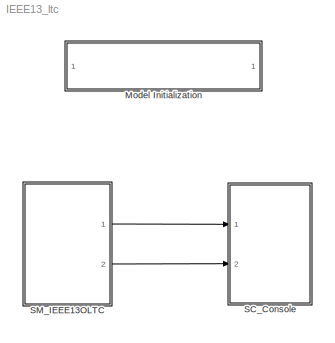
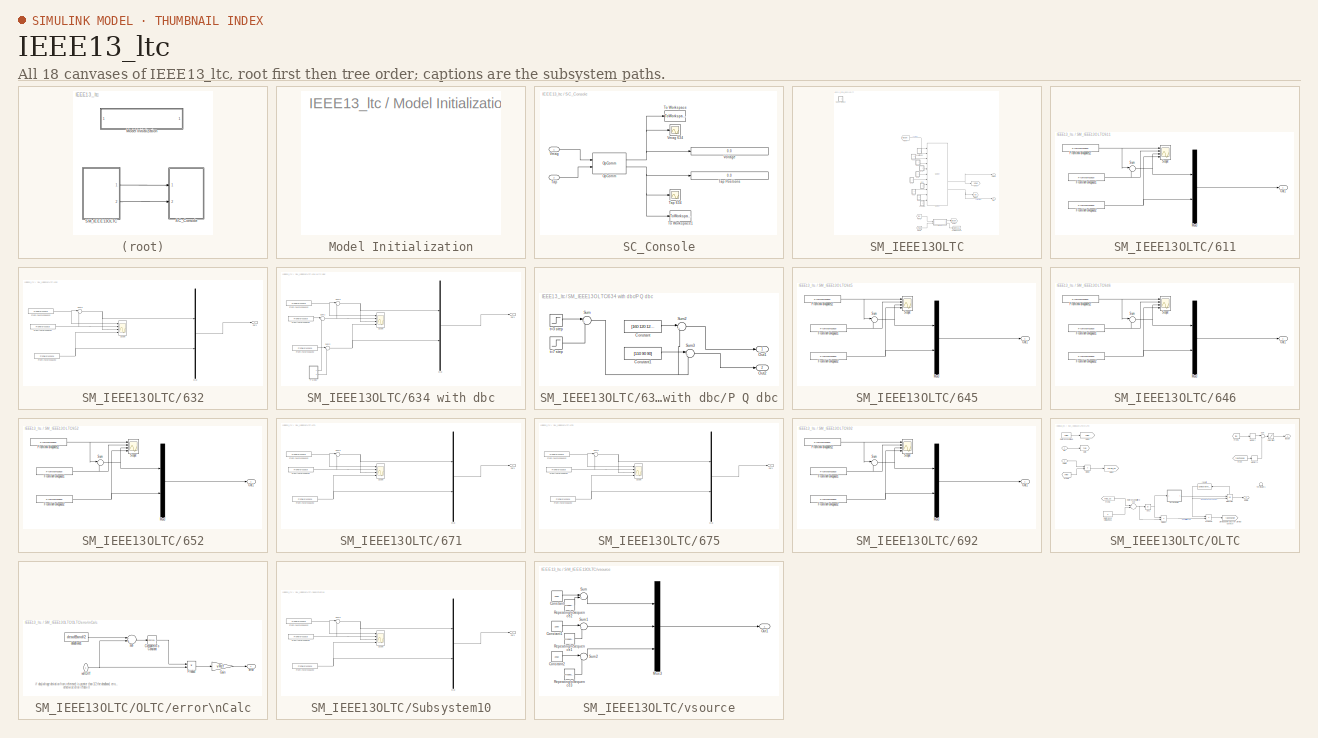
[diagram: thumbnail index - all 18 canvases of the model, root first then tree order]
MODEL IEEE13_ltc
KIND model
CONFIG InitFcn = Ts=3;
CONFIG PostLoadFcn = Ts=3;
BLOCK [SubSystem] Model Initialization
  AncestorBlock = artemis/Tools /Misc/Model Initialization
  CopyFcn = set_param(gcb,'LinkStatus','inactive')
  Ports = []
  RequestExecContextInheritance = off
  SID = 1
BLOCK [SubSystem] SC_Console
  Ports = [2]
  RequestExecContextInheritance = off
  SID = 150
BLOCK [Reference] SC_Console/OpComm  REF=rtlab/OpComm
  Interpolation = on
  Missed_Data = off
  Offset = off
  Ports = [2, 2]
  SID = 155
  Samples = off
  Sim_Time = off
  SourceBlock = rtlab/OpComm
  SourceType = RT-LAB OpComm
  Synchronization = on
  Threshold = 1.0
  dynSigOut = off
  from_console = 0
  groupe_acq = 1
  nbport = 2
  st = 0
  subsys_rate = 0
  warning_done = off
  writeOpCommFile = off
BLOCK [Inport] SC_Console/Tap
  IconDisplay = Port number
  Port = 2
  SID = 153
BLOCK [Scope] SC_Console/Tap 634
  Floating = off
  LimitDataPoints = off
  NumInputPorts = 1
  Ports = [1]
  SID = 158
  SaveName = ScopeData1
  TimeRange = 300
  YMax = 1
  YMin = -1
BLOCK [Display] SC_Console/Tap Positions
  Decimation = 1
  Ports = [1]
  SID = 160
BLOCK [ToWorkspace] SC_Console/To Workspace
  FixptAsFi = on
  MaxDataPoints = inf
  Ports = [1]
  SID = 177
  SampleTime = -1
  Save2DSignal = 3-D array (concatenate along third dimension)
  VariableName = Vmag_634
BLOCK [ToWorkspace] SC_Console/To Workspace1
  FixptAsFi = on
  MaxDataPoints = inf
  Ports = [1]
  SID = 178
  SampleTime = -1
  Save2DSignal = 3-D array (concatenate along third dimension)
  VariableName = Tap_634
BLOCK [Inport] SC_Console/Vmag
  IconDisplay = Port number
  SID = 151
BLOCK [Scope] SC_Console/Vmag 634
  Floating = off
  LimitDataPoints = off
  NumInputPorts = 1
  Ports = [1]
  SID = 157
  YMax = 272.761
  YMin = 246.783
BLOCK [Display] SC_Console/Voltage
  Decimation = 1
  Ports = [1]
  SID = 159
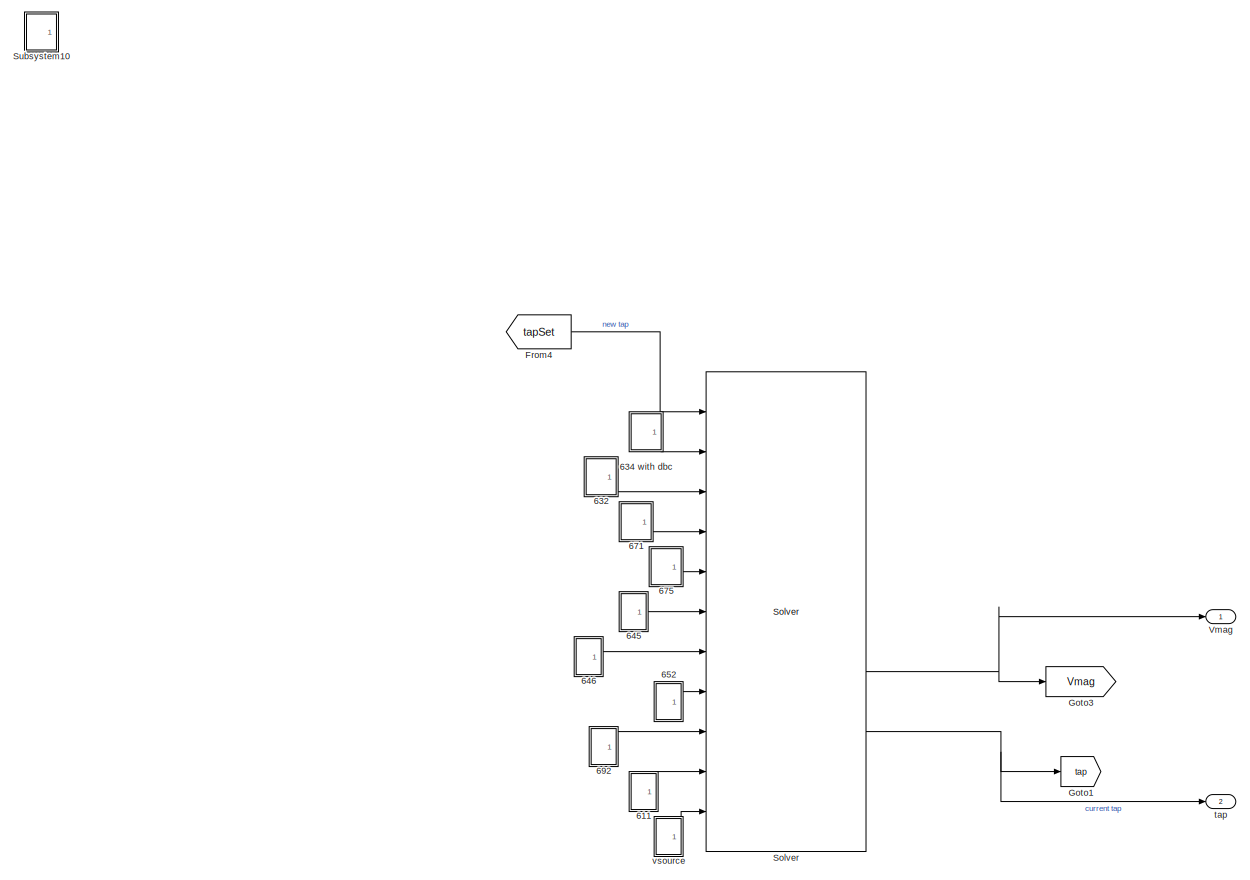
[diagram: SM_IEEE13OLTC - part 1/2, most of the canvas]
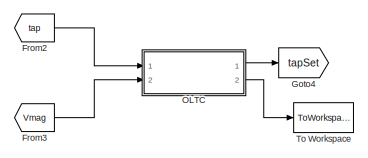
[diagram: SM_IEEE13OLTC - part 2/2, bottom center region]
BLOCK [SubSystem] SM_IEEE13OLTC
  Ports = [0, 2]
  RequestExecContextInheritance = off
  SID = 147
BLOCK [SubSystem] SM_IEEE13OLTC/611
  Ports = [0, 1]
  RequestExecContextInheritance = off
  SID = 247
BLOCK [FromWorkspace] SM_IEEE13OLTC/611/From\nWorkspace1
  OutputAfterFinalValue = Holding final value
  SID = 248
  SampleTime = Ts
  VariableName = Node_611_P
  ZeroCross = on
BLOCK [FromWorkspace] SM_IEEE13OLTC/611/From\nWorkspace12
  OutputAfterFinalValue = Holding final value
  SID = 249
  SampleTime = Ts
  VariableName = Node_611_G
  ZeroCross = on
BLOCK [FromWorkspace] SM_IEEE13OLTC/611/From\nWorkspace2
  OutputAfterFinalValue = Holding final value
  SID = 250
  SampleTime = Ts
  VariableName = Node_611_Q
  ZeroCross = on
BLOCK [Mux] SM_IEEE13OLTC/611/Mux3
  DisplayOption = bar
  Inputs = 2
  Ports = [2, 1]
  SID = 251
BLOCK [Outport] SM_IEEE13OLTC/611/Out1
  IconDisplay = Port number
  SID = 254
BLOCK [Scope] SM_IEEE13OLTC/611/Scope
  Floating = off
  LimitDataPoints = off
  NumInputPorts = 4
  Ports = [4]
  SID = 252
  SampleInput = on
  SampleTime = Ts
  SaveName = ScopeData1
  YMax = 231~800~5~5
  YMin = 229~-50~-5~-5
  ZoomMode = xonly
BLOCK [Sum] SM_IEEE13OLTC/611/Sum
  IconShape = round
  InputSameDT = off
  Inputs = |-+
  OutDataTypeStr = Inherit: Inherit via internal rule
  Ports = [2, 1]
  SID = 253
  SaturateOnIntegerOverflow = off
BLOCK [SubSystem] SM_IEEE13OLTC/632
  Ports = [0, 1]
  RequestExecContextInheritance = off
  SID = 231
BLOCK [FromWorkspace] SM_IEEE13OLTC/632/From\nWorkspace1
  OutputAfterFinalValue = Holding final value
  SID = 232
  SampleTime = Ts
  VariableName = Node_632_P
  ZeroCross = on
BLOCK [FromWorkspace] SM_IEEE13OLTC/632/From\nWorkspace12
  OutputAfterFinalValue = Holding final value
  SID = 233
  SampleTime = Ts
  VariableName = Node_632_G
  ZeroCross = on
BLOCK [FromWorkspace] SM_IEEE13OLTC/632/From\nWorkspace2
  OutputAfterFinalValue = Holding final value
  SID = 234
  SampleTime = Ts
  VariableName = Node_632_Q
  ZeroCross = on
BLOCK [Mux] SM_IEEE13OLTC/632/Mux
  DisplayOption = bar
  Inputs = 2
  Ports = [2, 1]
  SID = 235
BLOCK [Outport] SM_IEEE13OLTC/632/Out1
  IconDisplay = Port number
  SID = 238
BLOCK [Scope] SM_IEEE13OLTC/632/Scope
  Floating = off
  LimitDataPoints = off
  NumInputPorts = 4
  Ports = [4]
  SID = 236
  SampleInput = on
  SampleTime = Ts
  SaveName = ScopeData2
  YMax = 231~800~5~5
  YMin = 229~-50~-5~-5
  ZoomMode = xonly
BLOCK [Sum] SM_IEEE13OLTC/632/Sum6
  IconShape = round
  InputSameDT = off
  Inputs = |-+
  OutDataTypeStr = Inherit: Inherit via internal rule
  Ports = [2, 1]
  SID = 237
  SaturateOnIntegerOverflow = off
BLOCK [SubSystem] SM_IEEE13OLTC/634 with dbc
  Ports = [0, 1]
  RequestExecContextInheritance = off
  SID = 273
BLOCK [FromWorkspace] SM_IEEE13OLTC/634 with dbc/From\nWorkspace1
  OutputAfterFinalValue = Holding final value
  SID = 274
  SampleTime = Ts
  VariableName = Node_634_P
  ZeroCross = on
BLOCK [FromWorkspace] SM_IEEE13OLTC/634 with dbc/From\nWorkspace12
  OutputAfterFinalValue = Holding final value
  SID = 275
  SampleTime = Ts
  VariableName = Node_634_G
  ZeroCross = on
BLOCK [FromWorkspace] SM_IEEE13OLTC/634 with dbc/From\nWorkspace2
  OutputAfterFinalValue = Holding final value
  SID = 276
  SampleTime = Ts
  VariableName = Node_634_Q
  ZeroCross = on
BLOCK [Mux] SM_IEEE13OLTC/634 with dbc/Mux
  DisplayOption = bar
  Inputs = 2
  Ports = [2, 1]
  SID = 277
BLOCK [Outport] SM_IEEE13OLTC/634 with dbc/Out1
  IconDisplay = Port number
  SID = 280
BLOCK [SubSystem] SM_IEEE13OLTC/634 with dbc/P Q dbc
  Ports = [0, 2]
  RequestExecContextInheritance = off
  SID = 281
BLOCK [Constant] SM_IEEE13OLTC/634 with dbc/P Q dbc/Constant
  SID = 282
  Value = [160 120 120]
BLOCK [Constant] SM_IEEE13OLTC/634 with dbc/P Q dbc/Constant1
  SID = 283
  Value = [110 90 90]
BLOCK [Outport] SM_IEEE13OLTC/634 with dbc/P Q dbc/Out1
  IconDisplay = Port number
  SID = 289
BLOCK [Outport] SM_IEEE13OLTC/634 with dbc/P Q dbc/Out2
  IconDisplay = Port number
  Port = 2
  SID = 290
BLOCK [Sum] SM_IEEE13OLTC/634 with dbc/P Q dbc/Sum
  IconShape = round
  InputSameDT = off
  Inputs = |++
  OutDataTypeStr = Inherit: Inherit via internal rule
  Ports = [2, 1]
  SID = 284
  SaturateOnIntegerOverflow = off
BLOCK [Sum] SM_IEEE13OLTC/634 with dbc/P Q dbc/Sum2
  IconShape = round
  InputSameDT = off
  Inputs = |++
  OutDataTypeStr = Inherit: Inherit via internal rule
  Ports = [2, 1]
  SID = 285
  SaturateOnIntegerOverflow = off
BLOCK [Sum] SM_IEEE13OLTC/634 with dbc/P Q dbc/Sum3
  IconShape = round
  InputSameDT = off
  Inputs = |++
  OutDataTypeStr = Inherit: Inherit via internal rule
  Ports = [2, 1]
  SID = 286
  SaturateOnIntegerOverflow = off
BLOCK [Step] SM_IEEE13OLTC/634 with dbc/P Q dbc/t=3 step
  After = 100
  SID = 287
  SampleTime = 0
  Time = 3
BLOCK [Step] SM_IEEE13OLTC/634 with dbc/P Q dbc/t=7 step
  After = -200
  SID = 288
  SampleTime = 0
  Time = 7
BLOCK [Scope] SM_IEEE13OLTC/634 with dbc/Scope
  Floating = off
  LimitDataPoints = off
  NumInputPorts = 4
  Ports = [4]
  SID = 278
  SampleInput = on
  SampleTime = Ts
  SaveName = ScopeData2
  YMax = 231~800~5~5
  YMin = 229~-50~-5~-5
  ZoomMode = xonly
BLOCK [Sum] SM_IEEE13OLTC/634 with dbc/Sum1
  IconShape = round
  InputSameDT = off
  Inputs = |++
  OutDataTypeStr = Inherit: Inherit via internal rule
  Ports = [2, 1]
  SID = 291
  SaturateOnIntegerOverflow = off
BLOCK [Sum] SM_IEEE13OLTC/634 with dbc/Sum2
  IconShape = round
  InputSameDT = off
  Inputs = |++
  OutDataTypeStr = Inherit: Inherit via internal rule
  Ports = [2, 1]
  SID = 292
  SaturateOnIntegerOverflow = off
BLOCK [Sum] SM_IEEE13OLTC/634 with dbc/Sum6
  IconShape = round
  InputSameDT = off
  Inputs = |-+
  OutDataTypeStr = Inherit: Inherit via internal rule
  Ports = [2, 1]
  SID = 279
  SaturateOnIntegerOverflow = off
BLOCK [SubSystem] SM_IEEE13OLTC/645
  Ports = [0, 1]
  RequestExecContextInheritance = off
  SID = 183
BLOCK [FromWorkspace] SM_IEEE13OLTC/645/From\nWorkspace1
  OutputAfterFinalValue = Holding final value
  SID = 184
  SampleTime = Ts
  VariableName = Node_645_P
  ZeroCross = on
BLOCK [FromWorkspace] SM_IEEE13OLTC/645/From\nWorkspace12
  OutputAfterFinalValue = Holding final value
  SID = 185
  SampleTime = Ts
  VariableName = Node_645_G
  ZeroCross = on
BLOCK [FromWorkspace] SM_IEEE13OLTC/645/From\nWorkspace2
  OutputAfterFinalValue = Holding final value
  SID = 186
  SampleTime = Ts
  VariableName = Node_645_Q
  ZeroCross = on
BLOCK [Mux] SM_IEEE13OLTC/645/Mux3
  DisplayOption = bar
  Inputs = 2
  Ports = [2, 1]
  SID = 187
BLOCK [Outport] SM_IEEE13OLTC/645/Out1
  IconDisplay = Port number
  SID = 190
BLOCK [Scope] SM_IEEE13OLTC/645/Scope
  Floating = off
  LimitDataPoints = off
  NumInputPorts = 4
  Ports = [4]
  SID = 188
  SampleInput = on
  SampleTime = Ts
  SaveName = ScopeData1
  YMax = 231~800~5~5
  YMin = 229~-50~-5~-5
  ZoomMode = xonly
BLOCK [Sum] SM_IEEE13OLTC/645/Sum
  IconShape = round
  InputSameDT = off
  Inputs = |-+
  OutDataTypeStr = Inherit: Inherit via internal rule
  Ports = [2, 1]
  SID = 189
  SaturateOnIntegerOverflow = off
BLOCK [SubSystem] SM_IEEE13OLTC/646
  Ports = [0, 1]
  RequestExecContextInheritance = off
  SID = 199
BLOCK [FromWorkspace] SM_IEEE13OLTC/646/From\nWorkspace1
  OutputAfterFinalValue = Holding final value
  SID = 200
  SampleTime = Ts
  VariableName = Node_646_P
  ZeroCross = on
BLOCK [FromWorkspace] SM_IEEE13OLTC/646/From\nWorkspace12
  OutputAfterFinalValue = Holding final value
  SID = 201
  SampleTime = Ts
  VariableName = Node_646_G
  ZeroCross = on
BLOCK [FromWorkspace] SM_IEEE13OLTC/646/From\nWorkspace2
  OutputAfterFinalValue = Holding final value
  SID = 202
  SampleTime = Ts
  VariableName = Node_646_Q
  ZeroCross = on
BLOCK [Mux] SM_IEEE13OLTC/646/Mux3
  DisplayOption = bar
  Inputs = 2
  Ports = [2, 1]
  SID = 203
BLOCK [Outport] SM_IEEE13OLTC/646/Out1
  IconDisplay = Port number
  SID = 206
BLOCK [Scope] SM_IEEE13OLTC/646/Scope
  Floating = off
  LimitDataPoints = off
  NumInputPorts = 4
  Ports = [4]
  SID = 204
  SampleInput = on
  SampleTime = Ts
  SaveName = ScopeData1
  YMax = 231~800~5~5
  YMin = 229~-50~-5~-5
  ZoomMode = xonly
BLOCK [Sum] SM_IEEE13OLTC/646/Sum
  IconShape = round
  InputSameDT = off
  Inputs = |-+
  OutDataTypeStr = Inherit: Inherit via internal rule
  Ports = [2, 1]
  SID = 205
  SaturateOnIntegerOverflow = off
BLOCK [SubSystem] SM_IEEE13OLTC/652
  Ports = [0, 1]
  RequestExecContextInheritance = off
  SID = 223
BLOCK [FromWorkspace] SM_IEEE13OLTC/652/From\nWorkspace1
  OutputAfterFinalValue = Holding final value
  SID = 224
  SampleTime = Ts
  VariableName = Node_652_P
  ZeroCross = on
BLOCK [FromWorkspace] SM_IEEE13OLTC/652/From\nWorkspace12
  OutputAfterFinalValue = Holding final value
  SID = 225
  SampleTime = Ts
  VariableName = Node_652_G
  ZeroCross = on
BLOCK [FromWorkspace] SM_IEEE13OLTC/652/From\nWorkspace2
  OutputAfterFinalValue = Holding final value
  SID = 226
  SampleTime = Ts
  VariableName = Node_652_Q
  ZeroCross = on
BLOCK [Mux] SM_IEEE13OLTC/652/Mux3
  DisplayOption = bar
  Inputs = 2
  Ports = [2, 1]
  SID = 227
BLOCK [Outport] SM_IEEE13OLTC/652/Out1
  IconDisplay = Port number
  SID = 230
BLOCK [Scope] SM_IEEE13OLTC/652/Scope
  Floating = off
  LimitDataPoints = off
  NumInputPorts = 4
  Ports = [4]
  SID = 228
  SampleInput = on
  SampleTime = Ts
  SaveName = ScopeData1
  YMax = 231~800~5~5
  YMin = 229~-50~-5~-5
  ZoomMode = xonly
BLOCK [Sum] SM_IEEE13OLTC/652/Sum
  IconShape = round
  InputSameDT = off
  Inputs = |-+
  OutDataTypeStr = Inherit: Inherit via internal rule
  Ports = [2, 1]
  SID = 229
  SaturateOnIntegerOverflow = off
BLOCK [SubSystem] SM_IEEE13OLTC/671
  Ports = [0, 1]
  RequestExecContextInheritance = off
  SID = 207
BLOCK [FromWorkspace] SM_IEEE13OLTC/671/From\nWorkspace1
  OutputAfterFinalValue = Holding final value
  SID = 208
  SampleTime = Ts
  VariableName = Node_671_P
  ZeroCross = on
BLOCK [FromWorkspace] SM_IEEE13OLTC/671/From\nWorkspace12
  OutputAfterFinalValue = Holding final value
  SID = 209
  SampleTime = Ts
  VariableName = Node_671_G
  ZeroCross = on
BLOCK [FromWorkspace] SM_IEEE13OLTC/671/From\nWorkspace2
  OutputAfterFinalValue = Holding final value
  SID = 210
  SampleTime = Ts
  VariableName = Node_671_Q
  ZeroCross = on
BLOCK [Mux] SM_IEEE13OLTC/671/Mux
  DisplayOption = bar
  Inputs = 2
  Ports = [2, 1]
  SID = 211
BLOCK [Outport] SM_IEEE13OLTC/671/Out1
  IconDisplay = Port number
  SID = 214
BLOCK [Scope] SM_IEEE13OLTC/671/Scope
  Floating = off
  LimitDataPoints = off
  NumInputPorts = 4
  Ports = [4]
  SID = 212
  SampleInput = on
  SampleTime = Ts
  SaveName = ScopeData2
  YMax = 231~800~5~5
  YMin = 229~-50~-5~-5
  ZoomMode = xonly
BLOCK [Sum] SM_IEEE13OLTC/671/Sum6
  IconShape = round
  InputSameDT = off
  Inputs = |-+
  OutDataTypeStr = Inherit: Inherit via internal rule
  Ports = [2, 1]
  SID = 213
  SaturateOnIntegerOverflow = off
BLOCK [SubSystem] SM_IEEE13OLTC/675
  Ports = [0, 1]
  RequestExecContextInheritance = off
  SID = 215
BLOCK [FromWorkspace] SM_IEEE13OLTC/675/From\nWorkspace1
  OutputAfterFinalValue = Holding final value
  SID = 216
  SampleTime = Ts
  VariableName = Node_675_P
  ZeroCross = on
BLOCK [FromWorkspace] SM_IEEE13OLTC/675/From\nWorkspace12
  OutputAfterFinalValue = Holding final value
  SID = 217
  SampleTime = Ts
  VariableName = Node_675_G
  ZeroCross = on
BLOCK [FromWorkspace] SM_IEEE13OLTC/675/From\nWorkspace2
  OutputAfterFinalValue = Holding final value
  SID = 218
  SampleTime = Ts
  VariableName = Node_675_Q
  ZeroCross = on
BLOCK [Mux] SM_IEEE13OLTC/675/Mux
  DisplayOption = bar
  Inputs = 2
  Ports = [2, 1]
  SID = 219
BLOCK [Outport] SM_IEEE13OLTC/675/Out1
  IconDisplay = Port number
  SID = 222
BLOCK [Scope] SM_IEEE13OLTC/675/Scope
  Floating = off
  LimitDataPoints = off
  NumInputPorts = 4
  Ports = [4]
  SID = 220
  SampleInput = on
  SampleTime = Ts
  SaveName = ScopeData2
  YMax = 231~800~5~5
  YMin = 229~-50~-5~-5
  ZoomMode = xonly
BLOCK [Sum] SM_IEEE13OLTC/675/Sum6
  IconShape = round
  InputSameDT = off
  Inputs = |-+
  OutDataTypeStr = Inherit: Inherit via internal rule
  Ports = [2, 1]
  SID = 221
  SaturateOnIntegerOverflow = off
BLOCK [SubSystem] SM_IEEE13OLTC/692
  Ports = [0, 1]
  RequestExecContextInheritance = off
  SID = 239
BLOCK [FromWorkspace] SM_IEEE13OLTC/692/From\nWorkspace1
  OutputAfterFinalValue = Holding final value
  SID = 240
  SampleTime = Ts
  VariableName = Node_692_P
  ZeroCross = on
BLOCK [FromWorkspace] SM_IEEE13OLTC/692/From\nWorkspace12
  OutputAfterFinalValue = Holding final value
  SID = 241
  SampleTime = Ts
  VariableName = Node_692_G
  ZeroCross = on
BLOCK [FromWorkspace] SM_IEEE13OLTC/692/From\nWorkspace2
  OutputAfterFinalValue = Holding final value
  SID = 242
  SampleTime = Ts
  VariableName = Node_692_Q
  ZeroCross = on
BLOCK [Mux] SM_IEEE13OLTC/692/Mux3
  DisplayOption = bar
  Inputs = 2
  Ports = [2, 1]
  SID = 243
BLOCK [Outport] SM_IEEE13OLTC/692/Out1
  IconDisplay = Port number
  SID = 246
BLOCK [Scope] SM_IEEE13OLTC/692/Scope
  Floating = off
  LimitDataPoints = off
  NumInputPorts = 4
  Ports = [4]
  SID = 244
  SampleInput = on
  SampleTime = Ts
  SaveName = ScopeData1
  YMax = 231~800~5~5
  YMin = 229~-50~-5~-5
  ZoomMode = xonly
BLOCK [Sum] SM_IEEE13OLTC/692/Sum
  IconShape = round
  InputSameDT = off
  Inputs = |-+
  OutDataTypeStr = Inherit: Inherit via internal rule
  Ports = [2, 1]
  SID = 245
  SaturateOnIntegerOverflow = off
BLOCK [From] SM_IEEE13OLTC/From2
  GotoTag = tap
  SID = 127
BLOCK [From] SM_IEEE13OLTC/From3
  GotoTag = Vmag
  SID = 130
BLOCK [From] SM_IEEE13OLTC/From4
  GotoTag = tapSet
  SID = 132
BLOCK [Goto] SM_IEEE13OLTC/Goto1
  GotoTag = tap
  SID = 25
BLOCK [Goto] SM_IEEE13OLTC/Goto3
  GotoTag = Vmag
  SID = 128
BLOCK [Goto] SM_IEEE13OLTC/Goto4
  GotoTag = tapSet
  SID = 131
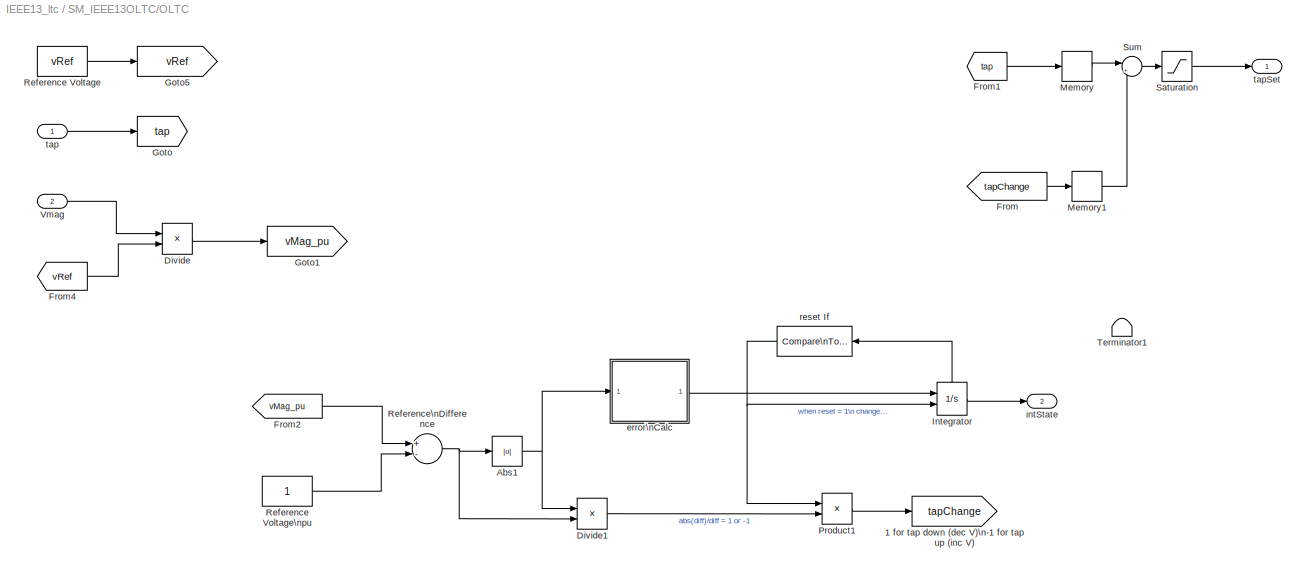
BLOCK [SubSystem] SM_IEEE13OLTC/OLTC
  Ports = [2, 2]
  RequestExecContextInheritance = off
  SID = 79
BLOCK [Goto] SM_IEEE13OLTC/OLTC/1 for tap down (dec V)\n-1 for tap up (inc V)
  GotoTag = tapChange
  SID = 87
BLOCK [Abs] SM_IEEE13OLTC/OLTC/Abs1
  SID = 82
  SaturateOnIntegerOverflow = off
BLOCK [Product] SM_IEEE13OLTC/OLTC/Divide
  InputSameDT = off
  Inputs = */
  OutDataTypeStr = Inherit: Inherit via internal rule
  Ports = [2, 1]
  RndMeth = Floor
  SID = 109
  SaturateOnIntegerOverflow = off
BLOCK [Product] SM_IEEE13OLTC/OLTC/Divide1
  InputSameDT = off
  Inputs = */
  OutDataTypeStr = Inherit: Inherit via internal rule
  Ports = [2, 1]
  RndMeth = Floor
  SID = 86
  SaturateOnIntegerOverflow = off
BLOCK [From] SM_IEEE13OLTC/OLTC/From
  GotoTag = tapChange
  SID = 96
BLOCK [From] SM_IEEE13OLTC/OLTC/From1
  GotoTag = tap
  SID = 97
BLOCK [From] SM_IEEE13OLTC/OLTC/From2
  GotoTag = vMag_pu
  SID = 113
BLOCK [From] SM_IEEE13OLTC/OLTC/From4
  GotoTag = vRef
  SID = 140
BLOCK [Goto] SM_IEEE13OLTC/OLTC/Goto
  GotoTag = tap
  SID = 102
BLOCK [Goto] SM_IEEE13OLTC/OLTC/Goto1
  GotoTag = vMag_pu
  SID = 104
BLOCK [Goto] SM_IEEE13OLTC/OLTC/Goto5
  GotoTag = vRef
  SID = 116
BLOCK [Integrator] SM_IEEE13OLTC/OLTC/Integrator
  ExternalReset = rising
  Ports = [2, 1, 0, 0, 1]
  SID = 88
  ShowStatePort = on
BLOCK [Memory] SM_IEEE13OLTC/OLTC/Memory
  SID = 98
BLOCK [Memory] SM_IEEE13OLTC/OLTC/Memory1
  SID = 99
BLOCK [Product] SM_IEEE13OLTC/OLTC/Product1
  InputSameDT = off
  OutDataTypeStr = Inherit: Inherit via internal rule
  Ports = [2, 1]
  RndMeth = Floor
  SID = 89
  SaturateOnIntegerOverflow = off
BLOCK [Constant] SM_IEEE13OLTC/OLTC/Reference Voltage
  SID = 108
  Value = vRef
BLOCK [Constant] SM_IEEE13OLTC/OLTC/Reference Voltage\npu
  SID = 141
BLOCK [Sum] SM_IEEE13OLTC/OLTC/Reference\nDifference
  InputSameDT = off
  Inputs = +-
  OutDataTypeStr = Inherit: Inherit via internal rule
  Ports = [2, 1]
  SID = 92
  SaturateOnIntegerOverflow = off
BLOCK [Saturate] SM_IEEE13OLTC/OLTC/Saturation
  InputPortMap = u0
  LowerLimit = tapPos(2)
  Ports = [1, 1]
  SID = 100
  UpperLimit = tapPos(1)
BLOCK [Sum] SM_IEEE13OLTC/OLTC/Sum
  IconShape = round
  InputSameDT = off
  Inputs = |+-
  OutDataTypeStr = Inherit: Inherit via internal rule
  Ports = [2, 1]
  SID = 101
  SaturateOnIntegerOverflow = off
BLOCK [Terminator] SM_IEEE13OLTC/OLTC/Terminator1
  SID = 180
BLOCK [Inport] SM_IEEE13OLTC/OLTC/Vmag
  IconDisplay = Port number
  Port = 2
  SID = 103
BLOCK [SubSystem] SM_IEEE13OLTC/OLTC/error\nCalc
  Ports = [1, 1]
  RequestExecContextInheritance = off
  SID = 121
BLOCK [Reference] SM_IEEE13OLTC/OLTC/error\nCalc/Compare\nTo Constant  REF=simulink/Logic and Bit\nOperations/Compare\nTo Constant
  OutDataTypeStr = boolean
  Ports = [1, 1]
  SID = 124
  SourceBlock = simulink/Logic and Bit\nOperations/Compare\nTo Constant
  SourceType = Compare To Constant
  ZeroCross = on
  const = 0
  relop = >
BLOCK [Gain] SM_IEEE13OLTC/OLTC/error\nCalc/Gain
  Gain = vRef
  OutDataTypeStr = Inherit: Inherit via internal rule
  ParamDataTypeStr = Inherit: Inherit via internal rule
  SID = 139
  SaturateOnIntegerOverflow = off
BLOCK [Product] SM_IEEE13OLTC/OLTC/error\nCalc/Product
  InputSameDT = off
  OutDataTypeStr = Inherit: Inherit via internal rule
  Ports = [2, 1]
  RndMeth = Floor
  SID = 126
  SaturateOnIntegerOverflow = off
BLOCK [Constant] SM_IEEE13OLTC/OLTC/error\nCalc/deadBand1
  SID = 118
  Value = deadBand/2
BLOCK [Outport] SM_IEEE13OLTC/OLTC/error\nCalc/error
  IconDisplay = Port number
  SID = 123
BLOCK [Sum] SM_IEEE13OLTC/OLTC/error\nCalc/sub
  InputSameDT = off
  Inputs = -+
  OutDataTypeStr = Inherit: Inherit via internal rule
  Ports = [2, 1]
  SID = 93
  SaturateOnIntegerOverflow = off
BLOCK [Inport] SM_IEEE13OLTC/OLTC/error\nCalc/voltDiff
  IconDisplay = Port number
  SID = 122
BLOCK [Outport] SM_IEEE13OLTC/OLTC/intState
  IconDisplay = Port number
  Port = 2
  SID = 179
BLOCK [Reference] SM_IEEE13OLTC/OLTC/reset If  REF=simulink/Logic and Bit\nOperations/Compare\nTo Constant
  OutDataTypeStr = boolean
  Ports = [1, 1]
  SID = 84
  SourceBlock = simulink/Logic and Bit\nOperations/Compare\nTo Constant
  SourceType = Compare To Constant
  ZeroCross = on
  const = intgConst
  relop = >=
BLOCK [Inport] SM_IEEE13OLTC/OLTC/tap
  IconDisplay = Port number
  SID = 80
BLOCK [Outport] SM_IEEE13OLTC/OLTC/tapSet
  IconDisplay = Port number
  SID = 81
BLOCK [Reference] SM_IEEE13OLTC/Solver  REF=rtlab_phasor/Solver
  Ports = [11, 7]
  SID = 2
  SourceBlock = rtlab_phasor/Solver
  builtin = on
  capidir = 'CAPI'
  capiprefix = capicomp_
  cyme = 'typical.sxst'
  cyme_pf = ''
  cyme_unbalanced = on
  dt = Ts
  dyr = '4992b.dyr'
  epname = System
  exporty = off
  extension = Excel
  fmudir = ''
  fmuprefix = fmucomp_
  lazy_netlist = off
  logging = off
  np = 1
  optim_threads = on
  perflog_on = off
  pf_export = on
  pf_flat_start = off
  pf_max_it = 100
  pf_smart_start = off
  pf_tol_v = 0.00000001
  powerfactory = 'network.dgs'
  raw = '4992b.raw'
  script_activate_postinit = off
  script_postinit_name = ''
  sim_mode = Dynamic simulation only (without power-flow)
  xls = 'IEEE13_ltc_liz.xls'
BLOCK [SubSystem] SM_IEEE13OLTC/Subsystem10
  Ports = [0, 1]
  RequestExecContextInheritance = off
  SID = 191
BLOCK [FromWorkspace] SM_IEEE13OLTC/Subsystem10/From\nWorkspace1
  OutputAfterFinalValue = Holding final value
  SID = 192
  SampleTime = Ts
  VariableName = Node_634_P
  ZeroCross = on
BLOCK [FromWorkspace] SM_IEEE13OLTC/Subsystem10/From\nWorkspace12
  OutputAfterFinalValue = Holding final value
  SID = 193
  SampleTime = Ts
  VariableName = Node_634_G
  ZeroCross = on
BLOCK [FromWorkspace] SM_IEEE13OLTC/Subsystem10/From\nWorkspace2
  OutputAfterFinalValue = Holding final value
  SID = 194
  SampleTime = Ts
  VariableName = Node_634_Q
  ZeroCross = on
BLOCK [Mux] SM_IEEE13OLTC/Subsystem10/Mux
  DisplayOption = bar
  Inputs = 2
  Ports = [2, 1]
  SID = 195
BLOCK [Outport] SM_IEEE13OLTC/Subsystem10/Out1
  IconDisplay = Port number
  SID = 198
BLOCK [Scope] SM_IEEE13OLTC/Subsystem10/Scope
  Floating = off
  LimitDataPoints = off
  NumInputPorts = 4
  Ports = [4]
  SID = 196
  SampleInput = on
  SampleTime = Ts
  SaveName = ScopeData2
  YMax = 231~800~5~5
  YMin = 229~-50~-5~-5
  ZoomMode = xonly
BLOCK [Sum] SM_IEEE13OLTC/Subsystem10/Sum6
  IconShape = round
  InputSameDT = off
  Inputs = |-+
  OutDataTypeStr = Inherit: Inherit via internal rule
  Ports = [2, 1]
  SID = 197
  SaturateOnIntegerOverflow = off
BLOCK [ToWorkspace] SM_IEEE13OLTC/To Workspace
  FixptAsFi = on
  MaxDataPoints = inf
  Ports = [1]
  SID = 181
  SampleTime = -1
  Save2DSignal = 3-D array (concatenate along third dimension)
  VariableName = itgrState
BLOCK [Outport] SM_IEEE13OLTC/Vmag
  IconDisplay = Port number
  SID = 148
BLOCK [Outport] SM_IEEE13OLTC/tap
  IconDisplay = Port number
  Port = 2
  SID = 149
BLOCK [SubSystem] SM_IEEE13OLTC/vsource
  Ports = [0, 1]
  RequestExecContextInheritance = off
  SID = 255
BLOCK [Constant] SM_IEEE13OLTC/vsource/Constant
  SID = 256
  Value = 2260
BLOCK [Constant] SM_IEEE13OLTC/vsource/Constant1
  SID = 257
  Value = 2260
BLOCK [Constant] SM_IEEE13OLTC/vsource/Constant2
  SID = 258
  Value = 2260
BLOCK [Mux] SM_IEEE13OLTC/vsource/Mux3
  DisplayOption = bar
  Inputs = 3
  Ports = [3, 1]
  SID = 259
BLOCK [Outport] SM_IEEE13OLTC/vsource/Out1
  IconDisplay = Port number
  SID = 266
BLOCK [Reference] SM_IEEE13OLTC/vsource/Repeating\nSequence1  REF=simulink/Sources/Repeating\nSequence
  Ports = [0, 1]
  SID = 260
  SourceBlock = simulink/Sources/Repeating\nSequence
  SourceType = Repeating table
  rep_seq_t = [0 5000 10000 15000 20000 25000 30000 35000 40000 45000 50000 55000 60000 65000]
  rep_seq_y = [0 10 20 30 40 50 60 50 40 30 20  15 10 5]
BLOCK [Reference] SM_IEEE13OLTC/vsource/Repeating\nSequence2  REF=simulink/Sources/Repeating\nSequence
  Ports = [0, 1]
  SID = 261
  SourceBlock = simulink/Sources/Repeating\nSequence
  SourceType = Repeating table
  rep_seq_t = [0 5000 10000 15000 20000 25000 30000 35000 40000 45000 50000 55000 60000 65000]
  rep_seq_y = [0 10 20 30 40 50 60 50 40 30 20  15 10 5]
BLOCK [Reference] SM_IEEE13OLTC/vsource/Repeating\nSequence3  REF=simulink/Sources/Repeating\nSequence
  Ports = [0, 1]
  SID = 262
  SourceBlock = simulink/Sources/Repeating\nSequence
  SourceType = Repeating table
  rep_seq_t = [0 5000 10000 15000 20000 25000 30000 35000 40000 45000 50000 55000 60000 65000]
  rep_seq_y = [0 10 20 30 40 50 60 50 40 30 20  15 10 5]
BLOCK [Sum] SM_IEEE13OLTC/vsource/Sum
  IconShape = round
  InputSameDT = off
  Inputs = |++
  OutDataTypeStr = Inherit: Inherit via internal rule
  Ports = [2, 1]
  SID = 263
  SaturateOnIntegerOverflow = off
BLOCK [Sum] SM_IEEE13OLTC/vsource/Sum1
  IconShape = round
  InputSameDT = off
  Inputs = |++
  OutDataTypeStr = Inherit: Inherit via internal rule
  Ports = [2, 1]
  SID = 264
  SaturateOnIntegerOverflow = off
BLOCK [Sum] SM_IEEE13OLTC/vsource/Sum2
  IconShape = round
  InputSameDT = off
  Inputs = |++
  OutDataTypeStr = Inherit: Inherit via internal rule
  Ports = [2, 1]
  SID = 265
  SaturateOnIntegerOverflow = off
ANNOTATION SM_IEEE13OLTC/OLTC: \n \n
ANNOTATION SM_IEEE13OLTC/OLTC/error\nCalc: if abs(voltage deviation from reference) is greater than 1/2 the deadband, error=1*dev\notherwise error=0*dev=0
NET SC_Console/OpComm:1 -> SC_Console/To Workspace:1, SC_Console/Vmag 634:1, SC_Console/Voltage:1
NET SC_Console/OpComm:2 -> SC_Console/Tap 634:1, SC_Console/Tap Positions:1, SC_Console/To Workspace1:1
LINE SC_Console/Tap:1 -> SC_Console/OpComm:2
LINE SC_Console/Vmag:1 -> SC_Console/OpComm:1
NET SM_IEEE13OLTC/611/From\nWorkspace12:1 -> SM_IEEE13OLTC/611/Scope:1, SM_IEEE13OLTC/611/Sum:1
NET SM_IEEE13OLTC/611/From\nWorkspace1:1 -> SM_IEEE13OLTC/611/Scope:2, SM_IEEE13OLTC/611/Sum:2
NET SM_IEEE13OLTC/611/From\nWorkspace2:1 -> SM_IEEE13OLTC/611/Mux3:2, SM_IEEE13OLTC/611/Scope:4
LINE SM_IEEE13OLTC/611/Mux3:1 -> SM_IEEE13OLTC/611/Out1:1
NET SM_IEEE13OLTC/611/Sum:1 -> SM_IEEE13OLTC/611/Mux3:1, SM_IEEE13OLTC/611/Scope:3
LINE SM_IEEE13OLTC/611:1 -> SM_IEEE13OLTC/Solver:10
NET SM_IEEE13OLTC/632/From\nWorkspace12:1 -> SM_IEEE13OLTC/632/Scope:1, SM_IEEE13OLTC/632/Sum6:1
NET SM_IEEE13OLTC/632/From\nWorkspace1:1 -> SM_IEEE13OLTC/632/Scope:2, SM_IEEE13OLTC/632/Sum6:2
NET SM_IEEE13OLTC/632/From\nWorkspace2:1 -> SM_IEEE13OLTC/632/Mux:2, SM_IEEE13OLTC/632/Scope:4
LINE SM_IEEE13OLTC/632/Mux:1 -> SM_IEEE13OLTC/632/Out1:1
NET SM_IEEE13OLTC/632/Sum6:1 -> SM_IEEE13OLTC/632/Mux:1, SM_IEEE13OLTC/632/Scope:3
LINE SM_IEEE13OLTC/632:1 -> SM_IEEE13OLTC/Solver:3
NET SM_IEEE13OLTC/634 with dbc/From\nWorkspace12:1 -> SM_IEEE13OLTC/634 with dbc/Scope:1, SM_IEEE13OLTC/634 with dbc/Sum6:1
LINE SM_IEEE13OLTC/634 with dbc/From\nWorkspace1:1 -> SM_IEEE13OLTC/634 with dbc/Sum1:1
LINE SM_IEEE13OLTC/634 with dbc/From\nWorkspace2:1 -> SM_IEEE13OLTC/634 with dbc/Sum2:1
LINE SM_IEEE13OLTC/634 with dbc/Mux:1 -> SM_IEEE13OLTC/634 with dbc/Out1:1
LINE SM_IEEE13OLTC/634 with dbc/P Q dbc/Constant1:1 -> SM_IEEE13OLTC/634 with dbc/P Q dbc/Sum3:1
LINE SM_IEEE13OLTC/634 with dbc/P Q dbc/Constant:1 -> SM_IEEE13OLTC/634 with dbc/P Q dbc/Sum2:1
LINE SM_IEEE13OLTC/634 with dbc/P Q dbc/Sum2:1 -> SM_IEEE13OLTC/634 with dbc/P Q dbc/Out1:1
LINE SM_IEEE13OLTC/634 with dbc/P Q dbc/Sum3:1 -> SM_IEEE13OLTC/634 with dbc/P Q dbc/Out2:1
NET SM_IEEE13OLTC/634 with dbc/P Q dbc/Sum:1 -> SM_IEEE13OLTC/634 with dbc/P Q dbc/Sum2:2, SM_IEEE13OLTC/634 with dbc/P Q dbc/Sum3:2
LINE SM_IEEE13OLTC/634 with dbc/P Q dbc/t=3 step:1 -> SM_IEEE13OLTC/634 with dbc/P Q dbc/Sum:1
LINE SM_IEEE13OLTC/634 with dbc/P Q dbc/t=7 step:1 -> SM_IEEE13OLTC/634 with dbc/P Q dbc/Sum:2
LINE SM_IEEE13OLTC/634 with dbc/P Q dbc:1 -> SM_IEEE13OLTC/634 with dbc/Sum1:2
LINE SM_IEEE13OLTC/634 with dbc/P Q dbc:2 -> SM_IEEE13OLTC/634 with dbc/Sum2:2
NET SM_IEEE13OLTC/634 with dbc/Sum1:1 -> SM_IEEE13OLTC/634 with dbc/Scope:2, SM_IEEE13OLTC/634 with dbc/Sum6:2
NET SM_IEEE13OLTC/634 with dbc/Sum2:1 -> SM_IEEE13OLTC/634 with dbc/Mux:2, SM_IEEE13OLTC/634 with dbc/Scope:4
NET SM_IEEE13OLTC/634 with dbc/Sum6:1 -> SM_IEEE13OLTC/634 with dbc/Mux:1, SM_IEEE13OLTC/634 with dbc/Scope:3
LINE SM_IEEE13OLTC/634 with dbc:1 -> SM_IEEE13OLTC/Solver:2
NET SM_IEEE13OLTC/645/From\nWorkspace12:1 -> SM_IEEE13OLTC/645/Scope:1, SM_IEEE13OLTC/645/Sum:1
NET SM_IEEE13OLTC/645/From\nWorkspace1:1 -> SM_IEEE13OLTC/645/Scope:2, SM_IEEE13OLTC/645/Sum:2
NET SM_IEEE13OLTC/645/From\nWorkspace2:1 -> SM_IEEE13OLTC/645/Mux3:2, SM_IEEE13OLTC/645/Scope:4
LINE SM_IEEE13OLTC/645/Mux3:1 -> SM_IEEE13OLTC/645/Out1:1
NET SM_IEEE13OLTC/645/Sum:1 -> SM_IEEE13OLTC/645/Mux3:1, SM_IEEE13OLTC/645/Scope:3
LINE SM_IEEE13OLTC/645:1 -> SM_IEEE13OLTC/Solver:6
NET SM_IEEE13OLTC/646/From\nWorkspace12:1 -> SM_IEEE13OLTC/646/Scope:1, SM_IEEE13OLTC/646/Sum:1
NET SM_IEEE13OLTC/646/From\nWorkspace1:1 -> SM_IEEE13OLTC/646/Scope:2, SM_IEEE13OLTC/646/Sum:2
NET SM_IEEE13OLTC/646/From\nWorkspace2:1 -> SM_IEEE13OLTC/646/Mux3:2, SM_IEEE13OLTC/646/Scope:4
LINE SM_IEEE13OLTC/646/Mux3:1 -> SM_IEEE13OLTC/646/Out1:1
NET SM_IEEE13OLTC/646/Sum:1 -> SM_IEEE13OLTC/646/Mux3:1, SM_IEEE13OLTC/646/Scope:3
LINE SM_IEEE13OLTC/646:1 -> SM_IEEE13OLTC/Solver:7
NET SM_IEEE13OLTC/652/From\nWorkspace12:1 -> SM_IEEE13OLTC/652/Scope:1, SM_IEEE13OLTC/652/Sum:1
NET SM_IEEE13OLTC/652/From\nWorkspace1:1 -> SM_IEEE13OLTC/652/Scope:2, SM_IEEE13OLTC/652/Sum:2
NET SM_IEEE13OLTC/652/From\nWorkspace2:1 -> SM_IEEE13OLTC/652/Mux3:2, SM_IEEE13OLTC/652/Scope:4
LINE SM_IEEE13OLTC/652/Mux3:1 -> SM_IEEE13OLTC/652/Out1:1
NET SM_IEEE13OLTC/652/Sum:1 -> SM_IEEE13OLTC/652/Mux3:1, SM_IEEE13OLTC/652/Scope:3
LINE SM_IEEE13OLTC/652:1 -> SM_IEEE13OLTC/Solver:8
NET SM_IEEE13OLTC/671/From\nWorkspace12:1 -> SM_IEEE13OLTC/671/Scope:1, SM_IEEE13OLTC/671/Sum6:1
NET SM_IEEE13OLTC/671/From\nWorkspace1:1 -> SM_IEEE13OLTC/671/Scope:2, SM_IEEE13OLTC/671/Sum6:2
NET SM_IEEE13OLTC/671/From\nWorkspace2:1 -> SM_IEEE13OLTC/671/Mux:2, SM_IEEE13OLTC/671/Scope:4
LINE SM_IEEE13OLTC/671/Mux:1 -> SM_IEEE13OLTC/671/Out1:1
NET SM_IEEE13OLTC/671/Sum6:1 -> SM_IEEE13OLTC/671/Mux:1, SM_IEEE13OLTC/671/Scope:3
LINE SM_IEEE13OLTC/671:1 -> SM_IEEE13OLTC/Solver:4
NET SM_IEEE13OLTC/675/From\nWorkspace12:1 -> SM_IEEE13OLTC/675/Scope:1, SM_IEEE13OLTC/675/Sum6:1
NET SM_IEEE13OLTC/675/From\nWorkspace1:1 -> SM_IEEE13OLTC/675/Scope:2, SM_IEEE13OLTC/675/Sum6:2
NET SM_IEEE13OLTC/675/From\nWorkspace2:1 -> SM_IEEE13OLTC/675/Mux:2, SM_IEEE13OLTC/675/Scope:4
LINE SM_IEEE13OLTC/675/Mux:1 -> SM_IEEE13OLTC/675/Out1:1
NET SM_IEEE13OLTC/675/Sum6:1 -> SM_IEEE13OLTC/675/Mux:1, SM_IEEE13OLTC/675/Scope:3
LINE SM_IEEE13OLTC/675:1 -> SM_IEEE13OLTC/Solver:5
NET SM_IEEE13OLTC/692/From\nWorkspace12:1 -> SM_IEEE13OLTC/692/Scope:1, SM_IEEE13OLTC/692/Sum:1
NET SM_IEEE13OLTC/692/From\nWorkspace1:1 -> SM_IEEE13OLTC/692/Scope:2, SM_IEEE13OLTC/692/Sum:2
NET SM_IEEE13OLTC/692/From\nWorkspace2:1 -> SM_IEEE13OLTC/692/Mux3:2, SM_IEEE13OLTC/692/Scope:4
LINE SM_IEEE13OLTC/692/Mux3:1 -> SM_IEEE13OLTC/692/Out1:1
NET SM_IEEE13OLTC/692/Sum:1 -> SM_IEEE13OLTC/692/Mux3:1, SM_IEEE13OLTC/692/Scope:3
LINE SM_IEEE13OLTC/692:1 -> SM_IEEE13OLTC/Solver:9
LINE SM_IEEE13OLTC/From2:1 -> SM_IEEE13OLTC/OLTC:1
LINE SM_IEEE13OLTC/From3:1 -> SM_IEEE13OLTC/OLTC:2
LINE SM_IEEE13OLTC/From4:1 -> SM_IEEE13OLTC/Solver:1
NET SM_IEEE13OLTC/OLTC/Abs1:1 -> SM_IEEE13OLTC/OLTC/Divide1:1, SM_IEEE13OLTC/OLTC/error\nCalc:1
LINE SM_IEEE13OLTC/OLTC/Divide1:1 -> SM_IEEE13OLTC/OLTC/Product1:2
LINE SM_IEEE13OLTC/OLTC/Divide:1 -> SM_IEEE13OLTC/OLTC/Goto1:1
LINE SM_IEEE13OLTC/OLTC/From1:1 -> SM_IEEE13OLTC/OLTC/Memory:1
LINE SM_IEEE13OLTC/OLTC/From2:1 -> SM_IEEE13OLTC/OLTC/Reference\nDifference:1
LINE SM_IEEE13OLTC/OLTC/From4:1 -> SM_IEEE13OLTC/OLTC/Divide:2
LINE SM_IEEE13OLTC/OLTC/From:1 -> SM_IEEE13OLTC/OLTC/Memory1:1
LINE SM_IEEE13OLTC/OLTC/Integrator:1 -> SM_IEEE13OLTC/OLTC/intState:1
LINE SM_IEEE13OLTC/OLTC/Integrator:state -> SM_IEEE13OLTC/OLTC/reset If:1
LINE SM_IEEE13OLTC/OLTC/Memory1:1 -> SM_IEEE13OLTC/OLTC/Sum:2
LINE SM_IEEE13OLTC/OLTC/Memory:1 -> SM_IEEE13OLTC/OLTC/Sum:1
LINE SM_IEEE13OLTC/OLTC/Product1:1 -> SM_IEEE13OLTC/OLTC/1 for tap down (dec V)\n-1 for tap up (inc V):1
LINE SM_IEEE13OLTC/OLTC/Reference Voltage:1 -> SM_IEEE13OLTC/OLTC/Goto5:1
LINE SM_IEEE13OLTC/OLTC/Reference Voltage\npu:1 -> SM_IEEE13OLTC/OLTC/Reference\nDifference:2
NET SM_IEEE13OLTC/OLTC/Reference\nDifference:1 -> SM_IEEE13OLTC/OLTC/Abs1:1, SM_IEEE13OLTC/OLTC/Divide1:2
LINE SM_IEEE13OLTC/OLTC/Saturation:1 -> SM_IEEE13OLTC/OLTC/tapSet:1
LINE SM_IEEE13OLTC/OLTC/Sum:1 -> SM_IEEE13OLTC/OLTC/Saturation:1
LINE SM_IEEE13OLTC/OLTC/Vmag:1 -> SM_IEEE13OLTC/OLTC/Divide:1
LINE SM_IEEE13OLTC/OLTC/error\nCalc/Compare\nTo Constant:1 -> SM_IEEE13OLTC/OLTC/error\nCalc/Product:1
LINE SM_IEEE13OLTC/OLTC/error\nCalc/Gain:1 -> SM_IEEE13OLTC/OLTC/error\nCalc/error:1
LINE SM_IEEE13OLTC/OLTC/error\nCalc/Product:1 -> SM_IEEE13OLTC/OLTC/error\nCalc/Gain:1
LINE SM_IEEE13OLTC/OLTC/error\nCalc/deadBand1:1 -> SM_IEEE13OLTC/OLTC/error\nCalc/sub:1
LINE SM_IEEE13OLTC/OLTC/error\nCalc/sub:1 -> SM_IEEE13OLTC/OLTC/error\nCalc/Compare\nTo Constant:1
NET SM_IEEE13OLTC/OLTC/error\nCalc/voltDiff:1 -> SM_IEEE13OLTC/OLTC/error\nCalc/Product:2, SM_IEEE13OLTC/OLTC/error\nCalc/sub:2
LINE SM_IEEE13OLTC/OLTC/error\nCalc:1 -> SM_IEEE13OLTC/OLTC/Integrator:1
NET SM_IEEE13OLTC/OLTC/reset If:1 -> SM_IEEE13OLTC/OLTC/Integrator:2, SM_IEEE13OLTC/OLTC/Product1:1
LINE SM_IEEE13OLTC/OLTC/tap:1 -> SM_IEEE13OLTC/OLTC/Goto:1
LINE SM_IEEE13OLTC/OLTC:1 -> SM_IEEE13OLTC/Goto4:1
LINE SM_IEEE13OLTC/OLTC:2 -> SM_IEEE13OLTC/To Workspace:1
NET SM_IEEE13OLTC/Solver:5 -> SM_IEEE13OLTC/Goto3:1, SM_IEEE13OLTC/Vmag:1
NET SM_IEEE13OLTC/Solver:6 -> SM_IEEE13OLTC/Goto1:1, SM_IEEE13OLTC/tap:1
NET SM_IEEE13OLTC/Subsystem10/From\nWorkspace12:1 -> SM_IEEE13OLTC/Subsystem10/Scope:1, SM_IEEE13OLTC/Subsystem10/Sum6:1
NET SM_IEEE13OLTC/Subsystem10/From\nWorkspace1:1 -> SM_IEEE13OLTC/Subsystem10/Scope:2, SM_IEEE13OLTC/Subsystem10/Sum6:2
NET SM_IEEE13OLTC/Subsystem10/From\nWorkspace2:1 -> SM_IEEE13OLTC/Subsystem10/Mux:2, SM_IEEE13OLTC/Subsystem10/Scope:4
LINE SM_IEEE13OLTC/Subsystem10/Mux:1 -> SM_IEEE13OLTC/Subsystem10/Out1:1
NET SM_IEEE13OLTC/Subsystem10/Sum6:1 -> SM_IEEE13OLTC/Subsystem10/Mux:1, SM_IEEE13OLTC/Subsystem10/Scope:3
LINE SM_IEEE13OLTC/vsource/Constant1:1 -> SM_IEEE13OLTC/vsource/Sum1:1
LINE SM_IEEE13OLTC/vsource/Constant2:1 -> SM_IEEE13OLTC/vsource/Sum2:1
LINE SM_IEEE13OLTC/vsource/Constant:1 -> SM_IEEE13OLTC/vsource/Sum:1
LINE SM_IEEE13OLTC/vsource/Mux3:1 -> SM_IEEE13OLTC/vsource/Out1:1
LINE SM_IEEE13OLTC/vsource/Repeating\nSequence1:1 -> SM_IEEE13OLTC/vsource/Sum1:2
LINE SM_IEEE13OLTC/vsource/Repeating\nSequence2:1 -> SM_IEEE13OLTC/vsource/Sum:2
LINE SM_IEEE13OLTC/vsource/Repeating\nSequence3:1 -> SM_IEEE13OLTC/vsource/Sum2:2
LINE SM_IEEE13OLTC/vsource/Sum1:1 -> SM_IEEE13OLTC/vsource/Mux3:2
LINE SM_IEEE13OLTC/vsource/Sum2:1 -> SM_IEEE13OLTC/vsource/Mux3:3
LINE SM_IEEE13OLTC/vsource/Sum:1 -> SM_IEEE13OLTC/vsource/Mux3:1
LINE SM_IEEE13OLTC/vsource:1 -> SM_IEEE13OLTC/Solver:11
LINE SM_IEEE13OLTC:1 -> SC_Console:1
LINE SM_IEEE13OLTC:2 -> SC_Console:2
note: NET lines group one-source signal fan-out (src -> all destinations, sorted); 1:1 wires keep LINE
